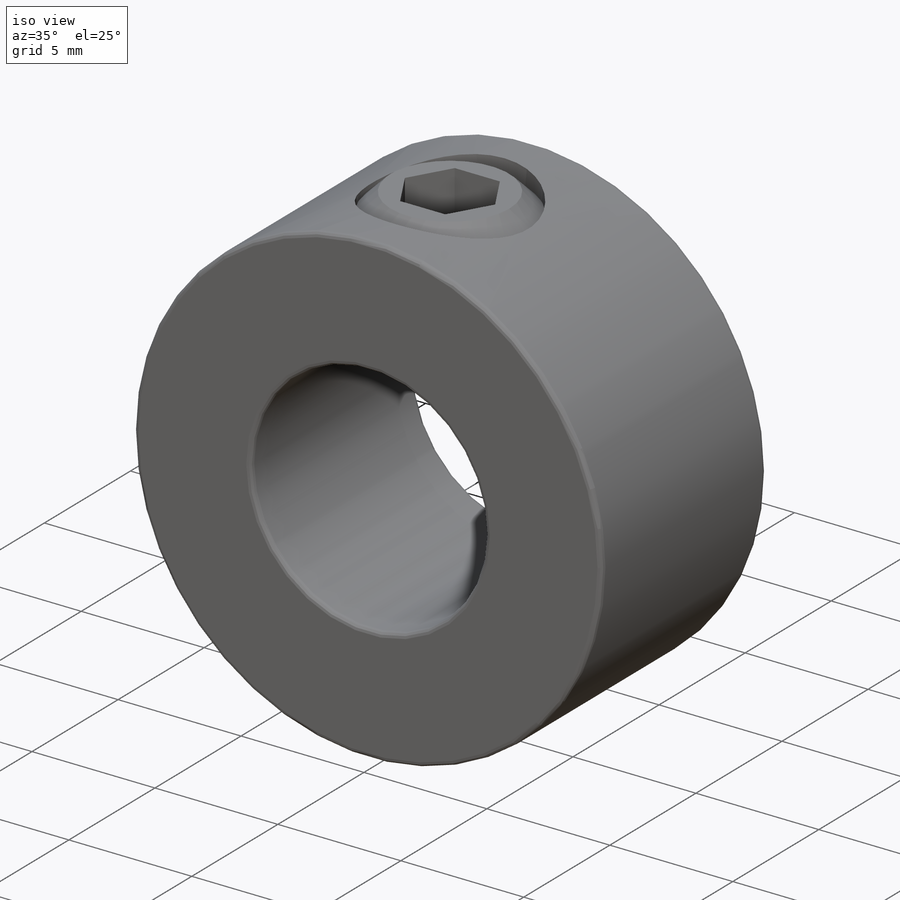
[diagram: iso view]
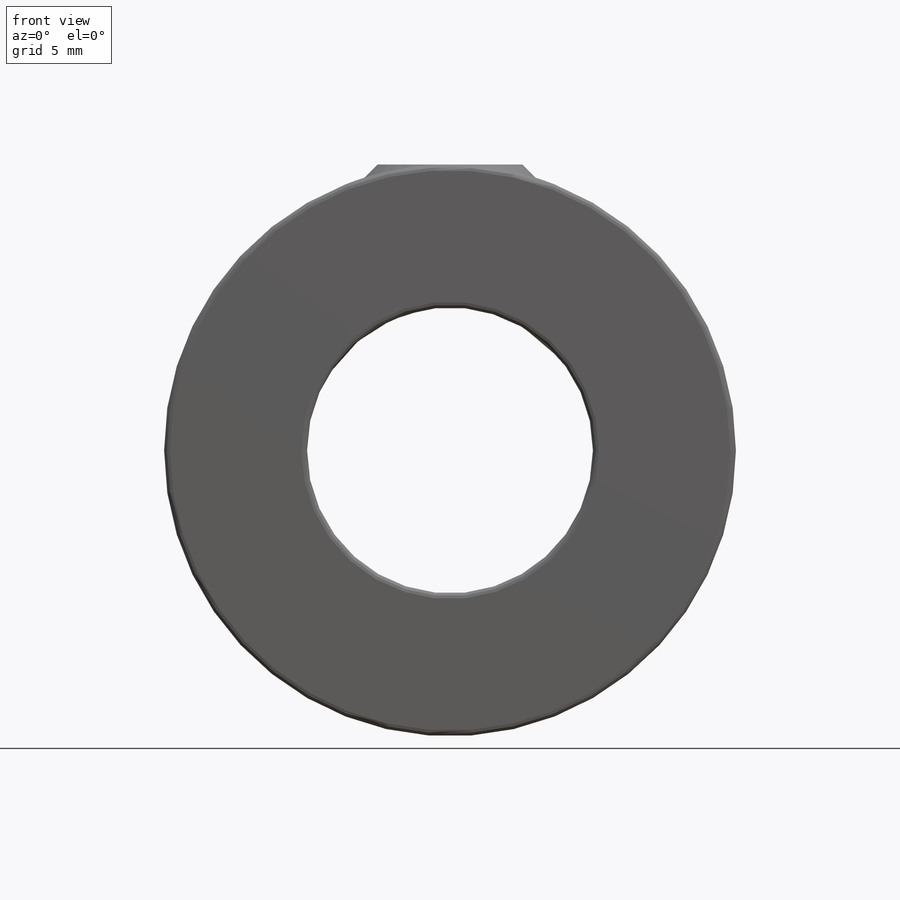
[diagram: front view]
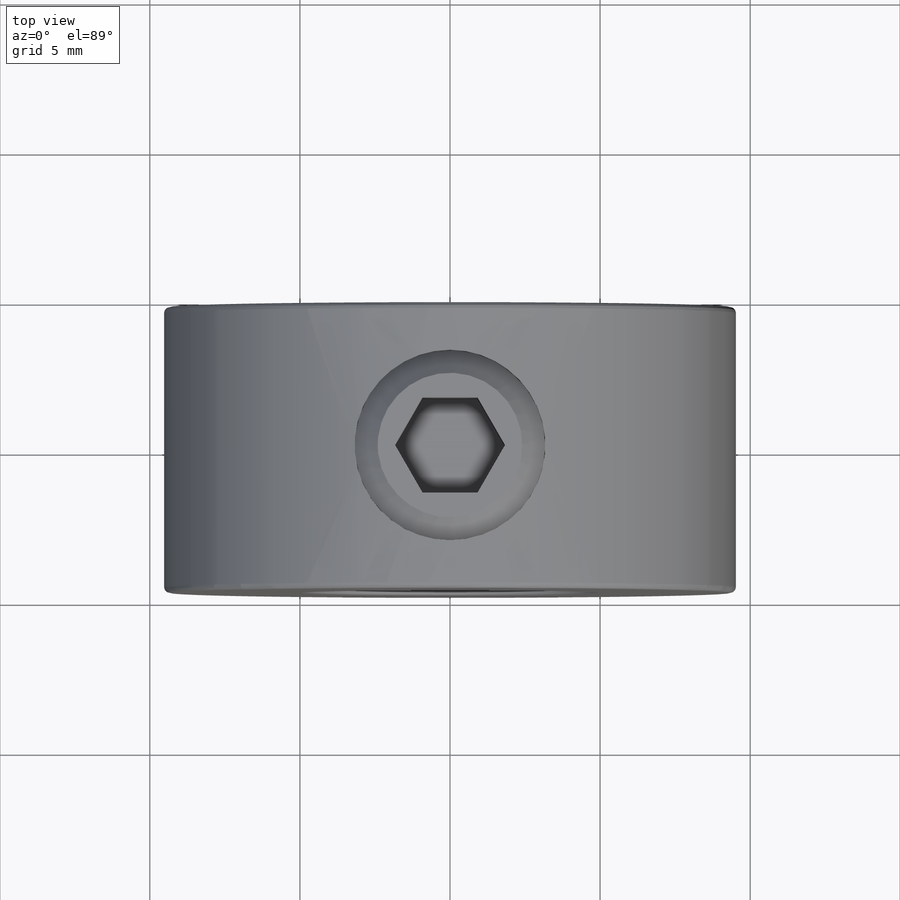
[diagram: top view]
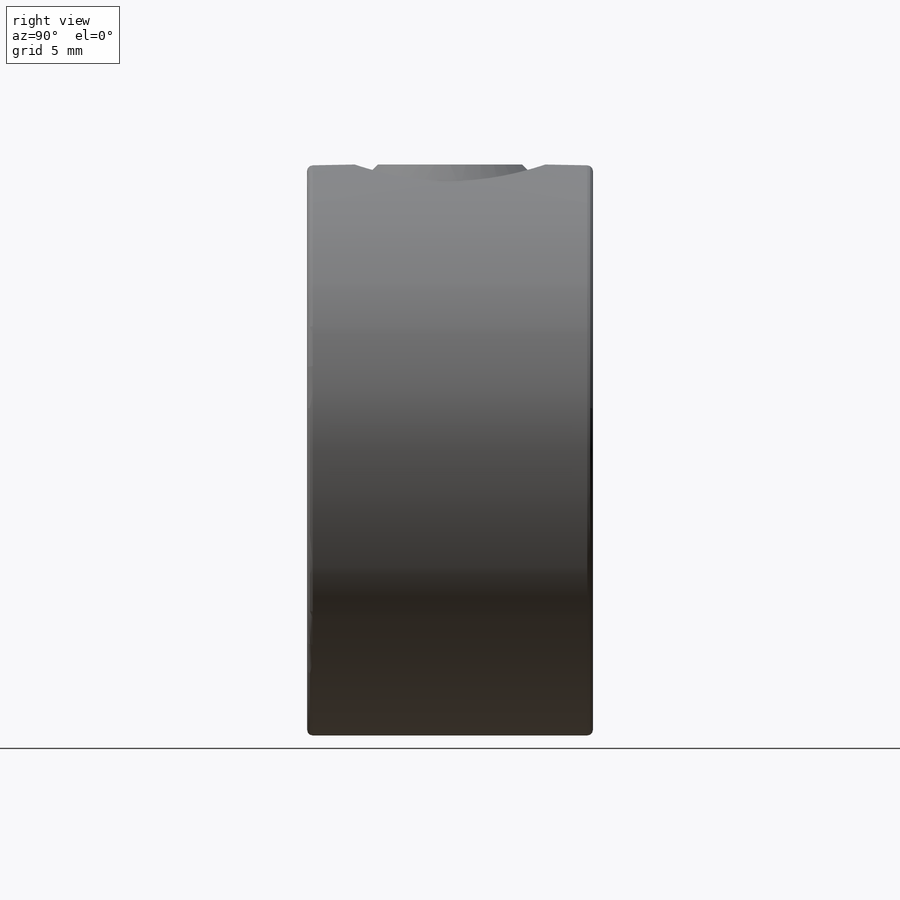
[diagram: right view]
SOLIDWORKS PART (.sldprt)
format: sldprt  version: not decoded by parser v0  size: 449,536 bytes
history: native  units: mm
features: sketch x4, cut_extrude x2, material x1, extrude x1, fillet x1, revolve x1 (+13 scaffold rows collapsed)
feature tree (23):
  scaffold x13  (default folders/planes/origin — collapsed)
  material  "AISI 1045 Steel, cold drawn"
  sketch  "Sketch1"  dims[Bore Dia=9.525mm OD=19.05mm]
  extrude  "Extrude1"  Depth=9.525mm Width=9.525mm
  sketch  "Sketch2"  dims[Set Screw Dia=6.35mm]
  cut_extrude  "Cut-Extrude1"  [1 undecoded]
  fillet  "Fillet1"  Radius=0.1905mm
  sketch  "Sketch3"  dims[c1.D1=12.7mm c1.D2=~3.373437mm c1.D3=12.7mm c2.D1=12.7mm c2.D2=12.7mm c2.D3=12.7mm c3.D1=~14.199032mm c3.D2=~14.199032mm c3.D3=12.7mm c3.D4=12.7mm c4.D3=41.275mm c4.D4=41.275mm c4.D1=4.064mm c4.D2=~0.976923mm c5.D3=~1.953846mm c5.D1=~10.31875mm c5.Screw Length=4.7625mm c5.D2=~0.578936mm c5.D4=~1.789217mm c5.D5=~0.636829mm c6.D2=~0.766807mm c6.D5=~2.262928mm c6.D1=~0.920169mm]
  revolve  "Revolve1"  Angle=360deg
  sketch  "Sketch4"  dims[Hex Size=3.175mm]
  cut_extrude  "Cut-Extrude2"  Depth=3.175mm
decode coverage: 8 of 9 modeling features carry decoded parameters
note: ~ marks probable driven/reference dimensions
note: 1 parameter value undecoded
note: suppression state not decoded; provenance and decode notes live in map.json
